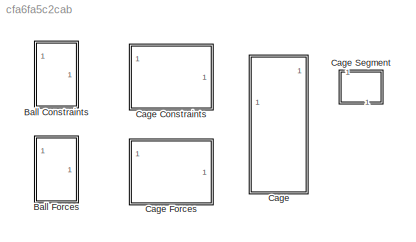
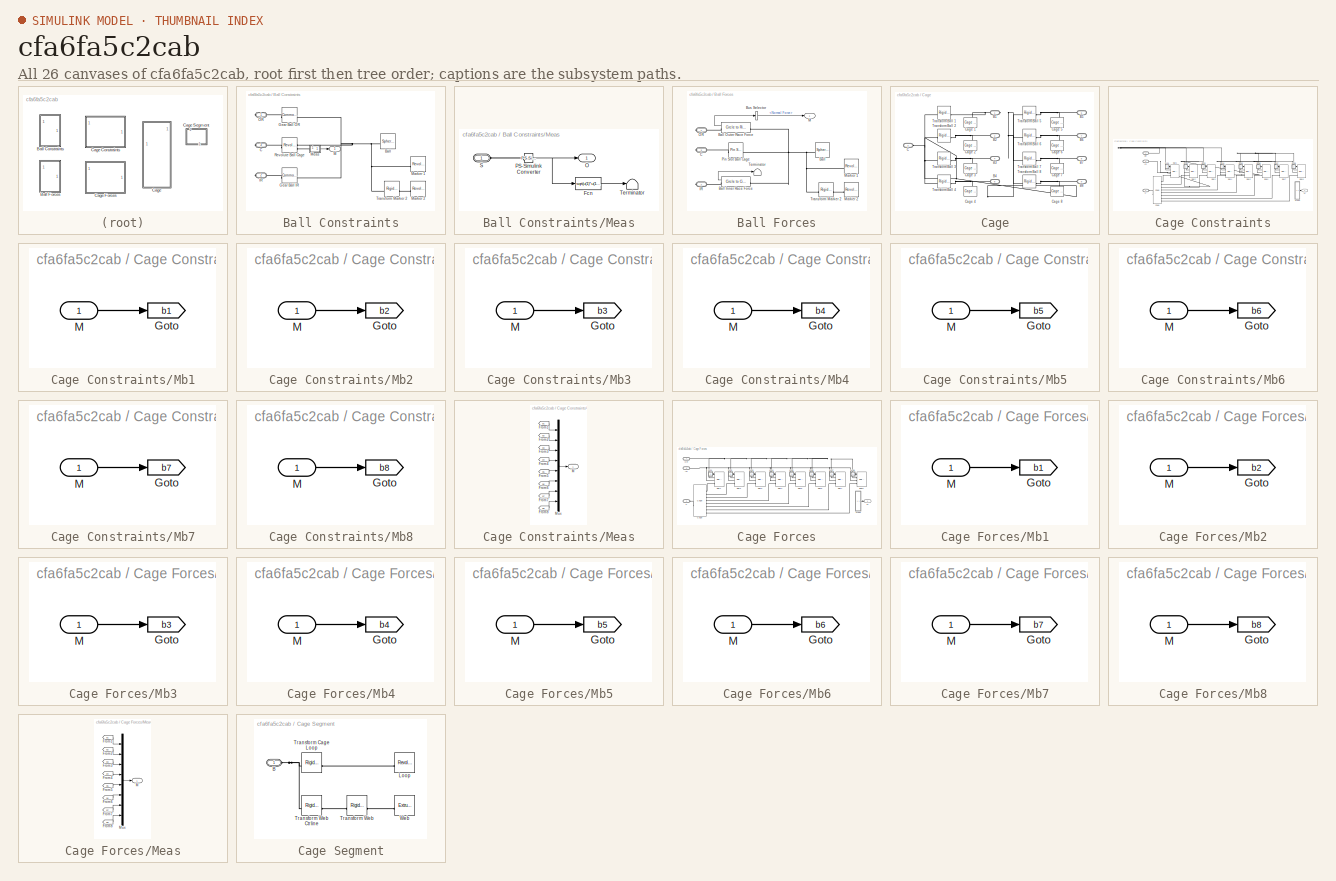
[diagram: thumbnail index - all 26 canvases of the model, root first then tree order]
MODEL slx_cfa6fa5c2cab
KIND library
CONFIG AbsTol = auto
CONFIG EnableMultiTasking = off
CONFIG FixedStep = auto
CONFIG MaxStep = auto
CONFIG MinStep = auto
CONFIG RelTol = 1e-3
CONFIG SampleTimeConstraint = Unconstrained
CONFIG SolverName = VariableStepAuto
CONFIG StartTime = 0.0
CONFIG StopTime = 10.0
BLOCK [SubSystem] Ball Constraints
BLOCK [Reference] Ball Constraints/Ball  REF=sm_lib/Body Elements/Spherical Solid
  SourceBlock = sm_lib/Body Elements/Spherical Solid
  SourceType = Spherical Solid
BLOCK [PMIOPort] Ball Constraints/C
  Port = 3
  Side = Right
BLOCK [Reference] Ball Constraints/Gear Ball IR  REF=sm_lib/Gears and
Couplings/Gears/Common Gear
Constraint
  SourceBlock = sm_lib/Gears and\nCouplings/Gears/Common Gear\nConstraint
  SourceType = Common Gear\nConstraint
BLOCK [Reference] Ball Constraints/Gear Ball OR  REF=sm_lib/Gears and
Couplings/Gears/Common Gear
Constraint
  SourceBlock = sm_lib/Gears and\nCouplings/Gears/Common Gear\nConstraint
  SourceType = Common Gear\nConstraint
BLOCK [PMIOPort] Ball Constraints/IR
  Port = 2
  Side = Right
BLOCK [Outport] Ball Constraints/M
  VectorParamsAs1DForOutWhenUnconnected = off
BLOCK [Reference] Ball Constraints/Marker 1  REF=sm_lib/Body Elements/Revolved Solid
  SourceBlock = sm_lib/Body Elements/Revolved Solid
  SourceType = Revolved Solid
BLOCK [Reference] Ball Constraints/Marker 2  REF=sm_lib/Body Elements/Revolved Solid
  SourceBlock = sm_lib/Body Elements/Revolved Solid
  SourceType = Revolved Solid
BLOCK [SubSystem] Ball Constraints/Meas
BLOCK [Fcn] Ball Constraints/Meas/Fcn
  Commented = on
  Expr = sqrt(u(1)*u(1)+u(2)*u(2))
BLOCK [Outport] Ball Constraints/Meas/O
  VectorParamsAs1DForOutWhenUnconnected = off
BLOCK [Reference] Ball Constraints/Meas/PS-Simulink Converter  REF=nesl_utility/PS-Simulink
Converter
  SourceBlock = nesl_utility/PS-Simulink\nConverter
  SourceType = PS-Simulink\nConverter
BLOCK [PMIOPort] Ball Constraints/Meas/S
  Side = Left
BLOCK [Terminator] Ball Constraints/Meas/Terminator
  Commented = on
BLOCK [PMIOPort] Ball Constraints/OR
  Side = Right
BLOCK [Reference] Ball Constraints/Revolute Ball Cage  REF=sm_lib/Joints/Revolute Joint
  SourceBlock = sm_lib/Joints/Revolute Joint
  SourceType = Revolute Joint
BLOCK [Reference] Ball Constraints/Transform Marker 2  REF=sm_lib/Frames and
Transforms/Rigid
Transform
  SourceBlock = sm_lib/Frames and\nTransforms/Rigid\nTransform
  SourceType = Rigid\nTransform
BLOCK [SubSystem] Ball Forces
BLOCK [Reference] Ball Forces/Ball  REF=sm_lib/Body Elements/Spherical Solid
  SourceBlock = sm_lib/Body Elements/Spherical Solid
  SourceType = Spherical Solid
BLOCK [Reference] Ball Forces/Ball Inner Race Force  REF=Contact_Forces_Lib/2D/Circle to Circle Force
  SourceBlock = Contact_Forces_Lib/2D/Circle to Circle Force
  SourceProductName = Simscape Multibody Contact Forces Library
  SourceType = Circle to Circle Force
BLOCK [Reference] Ball Forces/Ball Outer Race Force  REF=Contact_Forces_Lib/2D/Circle to Ring Force
  SourceBlock = Contact_Forces_Lib/2D/Circle to Ring Force
  SourceProductName = Simscape Multibody Contact Forces Library
  SourceType = Circle to Ring Force
BLOCK [BusSelector] Ball Forces/Bus Selector
  OutputSignals = Normal Force
BLOCK [PMIOPort] Ball Forces/C
  Port = 3
  Side = Right
BLOCK [PMIOPort] Ball Forces/IR
  Port = 2
  Side = Right
BLOCK [Outport] Ball Forces/M
  VectorParamsAs1DForOutWhenUnconnected = off
BLOCK [Reference] Ball Forces/Marker 1  REF=sm_lib/Body Elements/Revolved Solid
  SourceBlock = sm_lib/Body Elements/Revolved Solid
  SourceType = Revolved Solid
BLOCK [Reference] Ball Forces/Marker 2  REF=sm_lib/Body Elements/Revolved Solid
  SourceBlock = sm_lib/Body Elements/Revolved Solid
  SourceType = Revolved Solid
BLOCK [PMIOPort] Ball Forces/OR
  Side = Right
BLOCK [Reference] Ball Forces/Pin Slot Ball Cage  REF=sm_lib/Joints/Pin Slot Joint
  SourceBlock = sm_lib/Joints/Pin Slot Joint
  SourceType = Pin Slot Joint
BLOCK [Terminator] Ball Forces/Terminator
BLOCK [Reference] Ball Forces/Transform Marker 2  REF=sm_lib/Frames and
Transforms/Rigid
Transform
  SourceBlock = sm_lib/Frames and\nTransforms/Rigid\nTransform
  SourceType = Rigid\nTransform
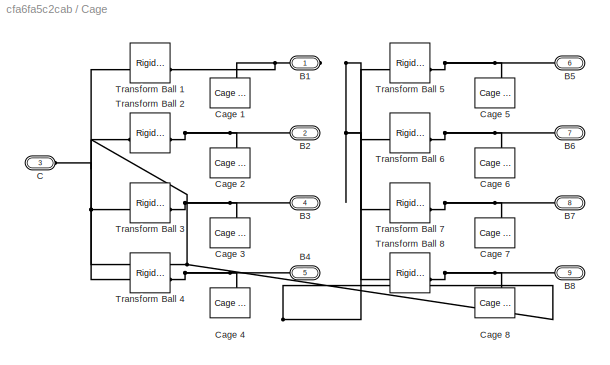
BLOCK [SubSystem] Cage
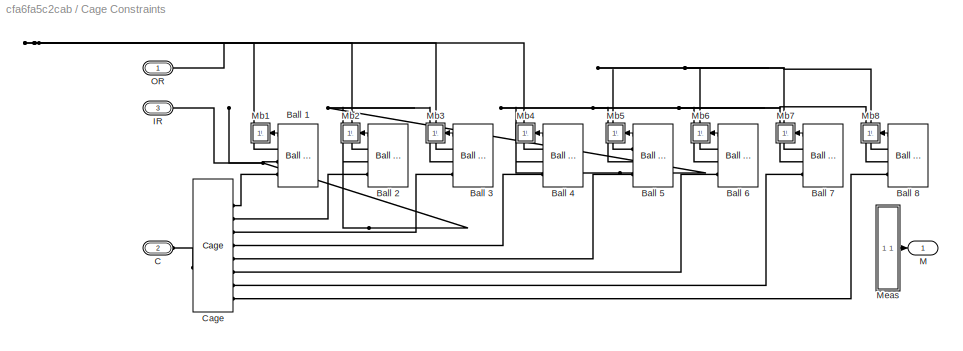
BLOCK [SubSystem] Cage Constraints
  Tag = PublishSubsystem
BLOCK [Reference] Cage Constraints/Ball 1  REF=$bdroot/Ball Constraints
  SourceBlock = $bdroot/Ball Constraints
  Tag = PublishSubsystem
BLOCK [Reference] Cage Constraints/Ball 2  REF=$bdroot/Ball Constraints
  SourceBlock = $bdroot/Ball Constraints
BLOCK [Reference] Cage Constraints/Ball 3  REF=$bdroot/Ball Constraints
  SourceBlock = $bdroot/Ball Constraints
BLOCK [Reference] Cage Constraints/Ball 4  REF=$bdroot/Ball Constraints
  SourceBlock = $bdroot/Ball Constraints
BLOCK [Reference] Cage Constraints/Ball 5  REF=$bdroot/Ball Constraints
  SourceBlock = $bdroot/Ball Constraints
BLOCK [Reference] Cage Constraints/Ball 6  REF=$bdroot/Ball Constraints
  SourceBlock = $bdroot/Ball Constraints
BLOCK [Reference] Cage Constraints/Ball 7  REF=$bdroot/Ball Constraints
  SourceBlock = $bdroot/Ball Constraints
BLOCK [Reference] Cage Constraints/Ball 8  REF=$bdroot/Ball Constraints
  SourceBlock = $bdroot/Ball Constraints
BLOCK [PMIOPort] Cage Constraints/C
  Port = 2
  Side = Left
BLOCK [Reference] Cage Constraints/Cage  REF=$bdroot/Cage
  SourceBlock = $bdroot/Cage
BLOCK [PMIOPort] Cage Constraints/IR
  Port = 3
  Side = Left
BLOCK [Outport] Cage Constraints/M
  VectorParamsAs1DForOutWhenUnconnected = off
BLOCK [SubSystem] Cage Constraints/Mb1
BLOCK [Goto] Cage Constraints/Mb1/Goto
  GotoTag = b1
  TagVisibility = global
BLOCK [Inport] Cage Constraints/Mb1/M
BLOCK [SubSystem] Cage Constraints/Mb2
BLOCK [Goto] Cage Constraints/Mb2/Goto
  GotoTag = b2
  TagVisibility = global
BLOCK [Inport] Cage Constraints/Mb2/M
BLOCK [SubSystem] Cage Constraints/Mb3
BLOCK [Goto] Cage Constraints/Mb3/Goto
  GotoTag = b3
  TagVisibility = global
BLOCK [Inport] Cage Constraints/Mb3/M
BLOCK [SubSystem] Cage Constraints/Mb4
BLOCK [Goto] Cage Constraints/Mb4/Goto
  GotoTag = b4
  TagVisibility = global
BLOCK [Inport] Cage Constraints/Mb4/M
BLOCK [SubSystem] Cage Constraints/Mb5
BLOCK [Goto] Cage Constraints/Mb5/Goto
  GotoTag = b5
  TagVisibility = global
BLOCK [Inport] Cage Constraints/Mb5/M
BLOCK [SubSystem] Cage Constraints/Mb6
BLOCK [Goto] Cage Constraints/Mb6/Goto
  GotoTag = b6
  TagVisibility = global
BLOCK [Inport] Cage Constraints/Mb6/M
BLOCK [SubSystem] Cage Constraints/Mb7
BLOCK [Goto] Cage Constraints/Mb7/Goto
  GotoTag = b7
  TagVisibility = global
BLOCK [Inport] Cage Constraints/Mb7/M
BLOCK [SubSystem] Cage Constraints/Mb8
BLOCK [Goto] Cage Constraints/Mb8/Goto
  GotoTag = b8
  TagVisibility = global
BLOCK [Inport] Cage Constraints/Mb8/M
BLOCK [SubSystem] Cage Constraints/Meas
BLOCK [From] Cage Constraints/Meas/From1
  GotoTag = b1
  TagVisibility = global
BLOCK [From] Cage Constraints/Meas/From2
  GotoTag = b2
  TagVisibility = global
BLOCK [From] Cage Constraints/Meas/From3
  GotoTag = b3
  TagVisibility = global
BLOCK [From] Cage Constraints/Meas/From4
  GotoTag = b4
  TagVisibility = global
BLOCK [From] Cage Constraints/Meas/From5
  GotoTag = b5
  TagVisibility = global
BLOCK [From] Cage Constraints/Meas/From6
  GotoTag = b6
  TagVisibility = global
BLOCK [From] Cage Constraints/Meas/From7
  GotoTag = b7
  TagVisibility = global
BLOCK [From] Cage Constraints/Meas/From8
  GotoTag = b8
  TagVisibility = global
BLOCK [Outport] Cage Constraints/Meas/M
  VectorParamsAs1DForOutWhenUnconnected = off
BLOCK [Mux] Cage Constraints/Meas/Mux
  DisplayOption = bar
  Inputs = 8
BLOCK [PMIOPort] Cage Constraints/OR
  Side = Left
BLOCK [SubSystem] Cage Forces
  Tag = PublishSubsystem
BLOCK [Reference] Cage Forces/Ball 1  REF=$bdroot/Ball Forces
  SourceBlock = $bdroot/Ball Forces
  Tag = PublishSubsystem
BLOCK [Reference] Cage Forces/Ball 2  REF=$bdroot/Ball Forces
  SourceBlock = $bdroot/Ball Forces
BLOCK [Reference] Cage Forces/Ball 3  REF=$bdroot/Ball Forces
  SourceBlock = $bdroot/Ball Forces
BLOCK [Reference] Cage Forces/Ball 4  REF=$bdroot/Ball Forces
  SourceBlock = $bdroot/Ball Forces
BLOCK [Reference] Cage Forces/Ball 5  REF=$bdroot/Ball Forces
  SourceBlock = $bdroot/Ball Forces
BLOCK [Reference] Cage Forces/Ball 6  REF=$bdroot/Ball Forces
  SourceBlock = $bdroot/Ball Forces
BLOCK [Reference] Cage Forces/Ball 7  REF=$bdroot/Ball Forces
  SourceBlock = $bdroot/Ball Forces
BLOCK [Reference] Cage Forces/Ball 8  REF=$bdroot/Ball Forces
  SourceBlock = $bdroot/Ball Forces
BLOCK [PMIOPort] Cage Forces/C
  Port = 2
  Side = Left
BLOCK [Reference] Cage Forces/Cage  REF=$bdroot/Cage
  SourceBlock = $bdroot/Cage
BLOCK [PMIOPort] Cage Forces/IR
  Port = 3
  Side = Left
BLOCK [Outport] Cage Forces/M
  VectorParamsAs1DForOutWhenUnconnected = off
BLOCK [SubSystem] Cage Forces/Mb1
BLOCK [Goto] Cage Forces/Mb1/Goto
  GotoTag = b1
  TagVisibility = global
BLOCK [Inport] Cage Forces/Mb1/M
BLOCK [SubSystem] Cage Forces/Mb2
BLOCK [Goto] Cage Forces/Mb2/Goto
  GotoTag = b2
  TagVisibility = global
BLOCK [Inport] Cage Forces/Mb2/M
BLOCK [SubSystem] Cage Forces/Mb3
BLOCK [Goto] Cage Forces/Mb3/Goto
  GotoTag = b3
  TagVisibility = global
BLOCK [Inport] Cage Forces/Mb3/M
BLOCK [SubSystem] Cage Forces/Mb4
BLOCK [Goto] Cage Forces/Mb4/Goto
  GotoTag = b4
  TagVisibility = global
BLOCK [Inport] Cage Forces/Mb4/M
BLOCK [SubSystem] Cage Forces/Mb5
BLOCK [Goto] Cage Forces/Mb5/Goto
  GotoTag = b5
  TagVisibility = global
BLOCK [Inport] Cage Forces/Mb5/M
BLOCK [SubSystem] Cage Forces/Mb6
BLOCK [Goto] Cage Forces/Mb6/Goto
  GotoTag = b6
  TagVisibility = global
BLOCK [Inport] Cage Forces/Mb6/M
BLOCK [SubSystem] Cage Forces/Mb7
BLOCK [Goto] Cage Forces/Mb7/Goto
  GotoTag = b7
  TagVisibility = global
BLOCK [Inport] Cage Forces/Mb7/M
BLOCK [SubSystem] Cage Forces/Mb8
BLOCK [Goto] Cage Forces/Mb8/Goto
  GotoTag = b8
  TagVisibility = global
BLOCK [Inport] Cage Forces/Mb8/M
BLOCK [SubSystem] Cage Forces/Meas
BLOCK [From] Cage Forces/Meas/From1
  GotoTag = b1
  TagVisibility = global
BLOCK [From] Cage Forces/Meas/From2
  GotoTag = b2
  TagVisibility = global
BLOCK [From] Cage Forces/Meas/From3
  GotoTag = b3
  TagVisibility = global
BLOCK [From] Cage Forces/Meas/From4
  GotoTag = b4
  TagVisibility = global
BLOCK [From] Cage Forces/Meas/From5
  GotoTag = b5
  TagVisibility = global
BLOCK [From] Cage Forces/Meas/From6
  GotoTag = b6
  TagVisibility = global
BLOCK [From] Cage Forces/Meas/From7
  GotoTag = b7
  TagVisibility = global
BLOCK [From] Cage Forces/Meas/From8
  GotoTag = b8
  TagVisibility = global
BLOCK [Outport] Cage Forces/Meas/M
  VectorParamsAs1DForOutWhenUnconnected = off
BLOCK [Mux] Cage Forces/Meas/Mux
  DisplayOption = bar
  Inputs = 8
BLOCK [PMIOPort] Cage Forces/OR
  Side = Left
BLOCK [SubSystem] Cage Segment
  NameLocation = right
BLOCK [PMIOPort] Cage Segment/B
  Side = Left
BLOCK [Reference] Cage Segment/Loop  REF=sm_lib/Body Elements/Revolved Solid
  SourceBlock = sm_lib/Body Elements/Revolved Solid
  SourceType = Revolved Solid
BLOCK [Reference] Cage Segment/Transform Cage Loop  REF=sm_lib/Frames and
Transforms/Rigid
Transform
  SourceBlock = sm_lib/Frames and\nTransforms/Rigid\nTransform
  SourceType = Rigid\nTransform
BLOCK [Reference] Cage Segment/Transform Web  REF=sm_lib/Frames and
Transforms/Rigid
Transform
  SourceBlock = sm_lib/Frames and\nTransforms/Rigid\nTransform
  SourceType = Rigid\nTransform
BLOCK [Reference] Cage Segment/Transform Web Ctrline  REF=sm_lib/Frames and
Transforms/Rigid
Transform
  SourceBlock = sm_lib/Frames and\nTransforms/Rigid\nTransform
  SourceType = Rigid\nTransform
BLOCK [Reference] Cage Segment/Web  REF=sm_lib/Body Elements/Extruded Solid
  SourceBlock = sm_lib/Body Elements/Extruded Solid
  SourceType = Extruded Solid
BLOCK [PMIOPort] Cage/B1
  Side = Right
BLOCK [PMIOPort] Cage/B2
  Port = 2
  Side = Right
BLOCK [PMIOPort] Cage/B3
  Port = 4
  Side = Right
BLOCK [PMIOPort] Cage/B4
  Port = 5
  Side = Right
BLOCK [PMIOPort] Cage/B5
  Port = 6
  Side = Right
BLOCK [PMIOPort] Cage/B6
  Port = 7
  Side = Right
BLOCK [PMIOPort] Cage/B7
  Port = 8
  Side = Right
BLOCK [PMIOPort] Cage/B8
  Port = 9
  Side = Right
BLOCK [PMIOPort] Cage/C
  Port = 3
  Side = Left
BLOCK [Reference] Cage/Cage 1  REF=$bdroot/Cage Segment
  NameLocation = right
  SourceBlock = $bdroot/Cage Segment
BLOCK [Reference] Cage/Cage 2  REF=$bdroot/Cage Segment
  NameLocation = right
  SourceBlock = $bdroot/Cage Segment
BLOCK [Reference] Cage/Cage 3  REF=$bdroot/Cage Segment
  NameLocation = right
  SourceBlock = $bdroot/Cage Segment
BLOCK [Reference] Cage/Cage 4  REF=$bdroot/Cage Segment
  NameLocation = right
  SourceBlock = $bdroot/Cage Segment
BLOCK [Reference] Cage/Cage 5  REF=$bdroot/Cage Segment
  NameLocation = right
  SourceBlock = $bdroot/Cage Segment
BLOCK [Reference] Cage/Cage 6  REF=$bdroot/Cage Segment
  NameLocation = right
  SourceBlock = $bdroot/Cage Segment
BLOCK [Reference] Cage/Cage 7  REF=$bdroot/Cage Segment
  NameLocation = right
  SourceBlock = $bdroot/Cage Segment
BLOCK [Reference] Cage/Cage 8  REF=$bdroot/Cage Segment
  NameLocation = right
  SourceBlock = $bdroot/Cage Segment
BLOCK [Reference] Cage/Transform Ball 1  REF=sm_lib/Frames and
Transforms/Rigid
Transform
  SourceBlock = sm_lib/Frames and\nTransforms/Rigid\nTransform
  SourceType = Rigid\nTransform
BLOCK [Reference] Cage/Transform Ball 2  REF=sm_lib/Frames and
Transforms/Rigid
Transform
  SourceBlock = sm_lib/Frames and\nTransforms/Rigid\nTransform
  SourceType = Rigid\nTransform
BLOCK [Reference] Cage/Transform Ball 3  REF=sm_lib/Frames and
Transforms/Rigid
Transform
  SourceBlock = sm_lib/Frames and\nTransforms/Rigid\nTransform
  SourceType = Rigid\nTransform
BLOCK [Reference] Cage/Transform Ball 4  REF=sm_lib/Frames and
Transforms/Rigid
Transform
  SourceBlock = sm_lib/Frames and\nTransforms/Rigid\nTransform
  SourceType = Rigid\nTransform
BLOCK [Reference] Cage/Transform Ball 5  REF=sm_lib/Frames and
Transforms/Rigid
Transform
  SourceBlock = sm_lib/Frames and\nTransforms/Rigid\nTransform
  SourceType = Rigid\nTransform
BLOCK [Reference] Cage/Transform Ball 6  REF=sm_lib/Frames and
Transforms/Rigid
Transform
  SourceBlock = sm_lib/Frames and\nTransforms/Rigid\nTransform
  SourceType = Rigid\nTransform
BLOCK [Reference] Cage/Transform Ball 7  REF=sm_lib/Frames and
Transforms/Rigid
Transform
  SourceBlock = sm_lib/Frames and\nTransforms/Rigid\nTransform
  SourceType = Rigid\nTransform
BLOCK [Reference] Cage/Transform Ball 8  REF=sm_lib/Frames and
Transforms/Rigid
Transform
  SourceBlock = sm_lib/Frames and\nTransforms/Rigid\nTransform
  SourceType = Rigid\nTransform
LINE Ball Constraints/Meas/Fcn:1 -> Ball Constraints/Meas/Terminator:1
NET Ball Constraints/Meas/PS-Simulink Converter:1 -> Ball Constraints/Meas/Fcn:1, Ball Constraints/Meas/O:1
LINE Ball Constraints/Meas:1 -> Ball Constraints/M:1
LINE Ball Forces/Ball Inner Race Force:1 -> Ball Forces/Terminator:1
LINE Ball Forces/Ball Outer Race Force:1 -> Ball Forces/Bus Selector:1
LINE Ball Forces/Bus Selector:1 -> Ball Forces/M:1
LINE Cage Constraints/Ball 1:1 -> Cage Constraints/Mb1:1
LINE Cage Constraints/Ball 2:1 -> Cage Constraints/Mb2:1
LINE Cage Constraints/Ball 3:1 -> Cage Constraints/Mb3:1
LINE Cage Constraints/Ball 4:1 -> Cage Constraints/Mb4:1
LINE Cage Constraints/Ball 5:1 -> Cage Constraints/Mb5:1
LINE Cage Constraints/Ball 6:1 -> Cage Constraints/Mb6:1
LINE Cage Constraints/Ball 7:1 -> Cage Constraints/Mb7:1
LINE Cage Constraints/Ball 8:1 -> Cage Constraints/Mb8:1
LINE Cage Constraints/Mb1/M:1 -> Cage Constraints/Mb1/Goto:1
LINE Cage Constraints/Mb2/M:1 -> Cage Constraints/Mb2/Goto:1
LINE Cage Constraints/Mb3/M:1 -> Cage Constraints/Mb3/Goto:1
LINE Cage Constraints/Mb4/M:1 -> Cage Constraints/Mb4/Goto:1
LINE Cage Constraints/Mb5/M:1 -> Cage Constraints/Mb5/Goto:1
LINE Cage Constraints/Mb6/M:1 -> Cage Constraints/Mb6/Goto:1
LINE Cage Constraints/Mb7/M:1 -> Cage Constraints/Mb7/Goto:1
LINE Cage Constraints/Mb8/M:1 -> Cage Constraints/Mb8/Goto:1
LINE Cage Constraints/Meas/From1:1 -> Cage Constraints/Meas/Mux:1
LINE Cage Constraints/Meas/From2:1 -> Cage Constraints/Meas/Mux:2
LINE Cage Constraints/Meas/From3:1 -> Cage Constraints/Meas/Mux:3
LINE Cage Constraints/Meas/From4:1 -> Cage Constraints/Meas/Mux:4
LINE Cage Constraints/Meas/From5:1 -> Cage Constraints/Meas/Mux:5
LINE Cage Constraints/Meas/From6:1 -> Cage Constraints/Meas/Mux:6
LINE Cage Constraints/Meas/From7:1 -> Cage Constraints/Meas/Mux:7
LINE Cage Constraints/Meas/From8:1 -> Cage Constraints/Meas/Mux:8
LINE Cage Constraints/Meas/Mux:1 -> Cage Constraints/Meas/M:1
LINE Cage Constraints/Meas:1 -> Cage Constraints/M:1
LINE Cage Forces/Ball 1:1 -> Cage Forces/Mb1:1
LINE Cage Forces/Ball 2:1 -> Cage Forces/Mb2:1
LINE Cage Forces/Ball 3:1 -> Cage Forces/Mb3:1
LINE Cage Forces/Ball 4:1 -> Cage Forces/Mb4:1
LINE Cage Forces/Ball 5:1 -> Cage Forces/Mb5:1
LINE Cage Forces/Ball 6:1 -> Cage Forces/Mb6:1
LINE Cage Forces/Ball 7:1 -> Cage Forces/Mb7:1
LINE Cage Forces/Ball 8:1 -> Cage Forces/Mb8:1
LINE Cage Forces/Mb1/M:1 -> Cage Forces/Mb1/Goto:1
LINE Cage Forces/Mb2/M:1 -> Cage Forces/Mb2/Goto:1
LINE Cage Forces/Mb3/M:1 -> Cage Forces/Mb3/Goto:1
LINE Cage Forces/Mb4/M:1 -> Cage Forces/Mb4/Goto:1
LINE Cage Forces/Mb5/M:1 -> Cage Forces/Mb5/Goto:1
LINE Cage Forces/Mb6/M:1 -> Cage Forces/Mb6/Goto:1
LINE Cage Forces/Mb7/M:1 -> Cage Forces/Mb7/Goto:1
LINE Cage Forces/Mb8/M:1 -> Cage Forces/Mb8/Goto:1
LINE Cage Forces/Meas/From1:1 -> Cage Forces/Meas/Mux:1
LINE Cage Forces/Meas/From2:1 -> Cage Forces/Meas/Mux:2
LINE Cage Forces/Meas/From3:1 -> Cage Forces/Meas/Mux:3
LINE Cage Forces/Meas/From4:1 -> Cage Forces/Meas/Mux:4
LINE Cage Forces/Meas/From5:1 -> Cage Forces/Meas/Mux:5
LINE Cage Forces/Meas/From6:1 -> Cage Forces/Meas/Mux:6
LINE Cage Forces/Meas/From7:1 -> Cage Forces/Meas/Mux:7
LINE Cage Forces/Meas/From8:1 -> Cage Forces/Meas/Mux:8
LINE Cage Forces/Meas/Mux:1 -> Cage Forces/Meas/M:1
LINE Cage Forces/Meas:1 -> Cage Forces/M:1
PNET net1: Ball Constraints/Ball:RConn1 -- Ball Constraints/Gear Ball IR:RConn1 -- Ball Constraints/Gear Ball OR:RConn1 -- Ball Constraints/Marker 1:RConn1 -- Ball Constraints/Revolute Ball Cage:RConn1 -- Ball Constraints/Transform Marker 2:LConn1
PLINE Ball Constraints/C:RConn1 -- Ball Constraints/Revolute Ball Cage:LConn1
PLINE Ball Constraints/Gear Ball IR:LConn1 -- Ball Constraints/IR:RConn1
PLINE Ball Constraints/Gear Ball OR:LConn1 -- Ball Constraints/OR:RConn1
PLINE Ball Constraints/Marker 2:RConn1 -- Ball Constraints/Transform Marker 2:RConn1
PLINE Ball Constraints/Meas/PS-Simulink Converter:LConn1 -- Ball Constraints/Meas/S:RConn1
PLINE Ball Constraints/Meas:LConn1 -- Ball Constraints/Revolute Ball Cage:RConn2
PNET net2: Ball Forces/Ball Inner Race Force:LConn1 -- Ball Forces/Ball Outer Race Force:LConn1 -- Ball Forces/Ball:RConn1 -- Ball Forces/Marker 1:RConn1 -- Ball Forces/Pin Slot Ball Cage:RConn1 -- Ball Forces/Transform Marker 2:LConn1
PLINE Ball Forces/Ball Inner Race Force:RConn1 -- Ball Forces/IR:RConn1
PLINE Ball Forces/Ball Outer Race Force:RConn1 -- Ball Forces/OR:RConn1
PLINE Ball Forces/C:RConn1 -- Ball Forces/Pin Slot Ball Cage:LConn1
PLINE Ball Forces/Marker 2:RConn1 -- Ball Forces/Transform Marker 2:RConn1
PNET net3: Cage Constraints/Ball 1:RConn1 -- Cage Constraints/Ball 2:RConn1 -- Cage Constraints/Ball 3:RConn1 -- Cage Constraints/Ball 4:RConn1 -- Cage Constraints/Ball 5:RConn1 -- Cage Constraints/Ball 6:RConn1 -- Cage Constraints/Ball 7:RConn1 -- Cage Constraints/Ball 8:RConn1 -- Cage Constraints/OR:RConn1
PNET net4: Cage Constraints/Ball 1:RConn2 -- Cage Constraints/Ball 2:RConn2 -- Cage Constraints/Ball 3:RConn2 -- Cage Constraints/Ball 4:RConn2 -- Cage Constraints/Ball 5:RConn2 -- Cage Constraints/Ball 6:RConn2 -- Cage Constraints/Ball 7:RConn2 -- Cage Constraints/Ball 8:RConn2 -- Cage Constraints/IR:RConn1
PLINE Cage Constraints/Ball 1:RConn3 -- Cage Constraints/Cage:RConn1
PLINE Cage Constraints/Ball 2:RConn3 -- Cage Constraints/Cage:RConn2
PLINE Cage Constraints/Ball 3:RConn3 -- Cage Constraints/Cage:RConn3
PLINE Cage Constraints/Ball 4:RConn3 -- Cage Constraints/Cage:RConn4
PLINE Cage Constraints/Ball 5:RConn3 -- Cage Constraints/Cage:RConn5
PLINE Cage Constraints/Ball 6:RConn3 -- Cage Constraints/Cage:RConn6
PLINE Cage Constraints/Ball 7:RConn3 -- Cage Constraints/Cage:RConn7
PLINE Cage Constraints/Ball 8:RConn3 -- Cage Constraints/Cage:RConn8
PLINE Cage Constraints/C:RConn1 -- Cage Constraints/Cage:LConn1
PNET net5: Cage Forces/Ball 1:RConn1 -- Cage Forces/Ball 2:RConn1 -- Cage Forces/Ball 3:RConn1 -- Cage Forces/Ball 4:RConn1 -- Cage Forces/Ball 5:RConn1 -- Cage Forces/Ball 6:RConn1 -- Cage Forces/Ball 7:RConn1 -- Cage Forces/Ball 8:RConn1 -- Cage Forces/OR:RConn1
PNET net6: Cage Forces/Ball 1:RConn2 -- Cage Forces/Ball 2:RConn2 -- Cage Forces/Ball 3:RConn2 -- Cage Forces/Ball 4:RConn2 -- Cage Forces/Ball 5:RConn2 -- Cage Forces/Ball 6:RConn2 -- Cage Forces/Ball 7:RConn2 -- Cage Forces/Ball 8:RConn2 -- Cage Forces/IR:RConn1
PLINE Cage Forces/Ball 1:RConn3 -- Cage Forces/Cage:RConn1
PLINE Cage Forces/Ball 2:RConn3 -- Cage Forces/Cage:RConn2
PLINE Cage Forces/Ball 3:RConn3 -- Cage Forces/Cage:RConn3
PLINE Cage Forces/Ball 4:RConn3 -- Cage Forces/Cage:RConn4
PLINE Cage Forces/Ball 5:RConn3 -- Cage Forces/Cage:RConn5
PLINE Cage Forces/Ball 6:RConn3 -- Cage Forces/Cage:RConn6
PLINE Cage Forces/Ball 7:RConn3 -- Cage Forces/Cage:RConn7
PLINE Cage Forces/Ball 8:RConn3 -- Cage Forces/Cage:RConn8
PLINE Cage Forces/C:RConn1 -- Cage Forces/Cage:LConn1
PNET net7: Cage Segment/B:RConn1 -- Cage Segment/Transform Cage Loop:LConn1 -- Cage Segment/Transform Web Ctrline:LConn1
PLINE Cage Segment/Loop:RConn1 -- Cage Segment/Transform Cage Loop:RConn1
PLINE Cage Segment/Transform Web Ctrline:RConn1 -- Cage Segment/Transform Web:LConn1
PLINE Cage Segment/Transform Web:RConn1 -- Cage Segment/Web:RConn1
PNET net8: Cage/B1:RConn1 -- Cage/Cage 1:LConn1 -- Cage/Transform Ball 1:RConn1
PNET net9: Cage/B2:RConn1 -- Cage/Cage 2:LConn1 -- Cage/Transform Ball 2:RConn1
PNET net10: Cage/B3:RConn1 -- Cage/Cage 3:LConn1 -- Cage/Transform Ball 3:RConn1
PNET net11: Cage/B4:RConn1 -- Cage/Cage 4:LConn1 -- Cage/Transform Ball 4:RConn1
PNET net12: Cage/B5:RConn1 -- Cage/Cage 5:LConn1 -- Cage/Transform Ball 5:RConn1
PNET net13: Cage/B6:RConn1 -- Cage/Cage 6:LConn1 -- Cage/Transform Ball 6:RConn1
PNET net14: Cage/B7:RConn1 -- Cage/Cage 7:LConn1 -- Cage/Transform Ball 7:RConn1
PNET net15: Cage/B8:RConn1 -- Cage/Cage 8:LConn1 -- Cage/Transform Ball 8:RConn1
PNET net16: Cage/C:RConn1 -- Cage/Transform Ball 1:LConn1 -- Cage/Transform Ball 2:LConn1 -- Cage/Transform Ball 3:LConn1 -- Cage/Transform Ball 4:LConn1 -- Cage/Transform Ball 5:LConn1 -- Cage/Transform Ball 6:LConn1 -- Cage/Transform Ball 7:LConn1 -- Cage/Transform Ball 8:LConn1
note: NET lines group one-source signal fan-out (src -> all destinations, sorted); 1:1 wires keep LINE; PNET lines group multi-terminal physical nets as a canonical sorted terminal list (undirected conserving connections); 2-terminal nets keep the pairwise PLINE form
